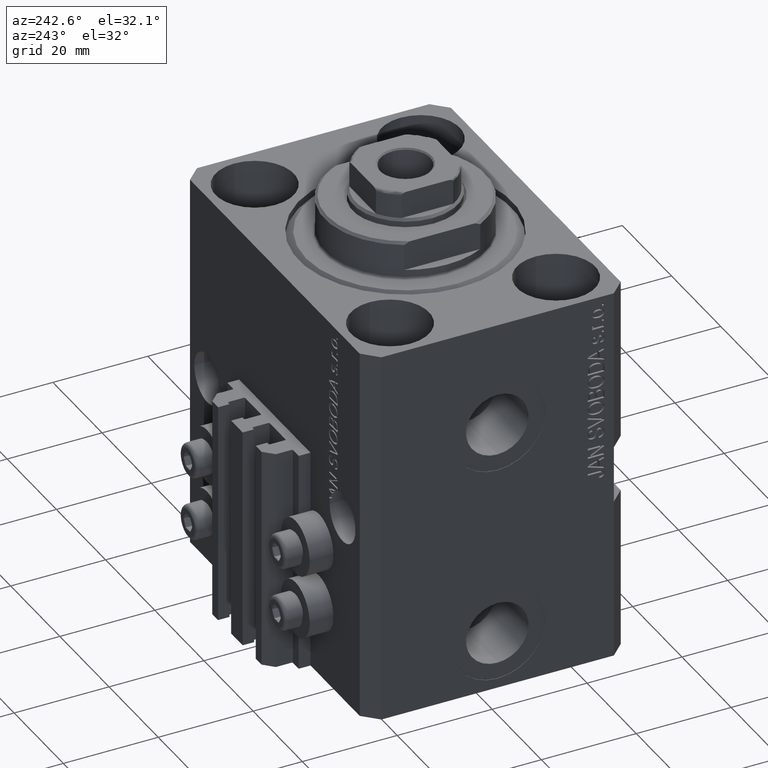
[diagram: clean part render]
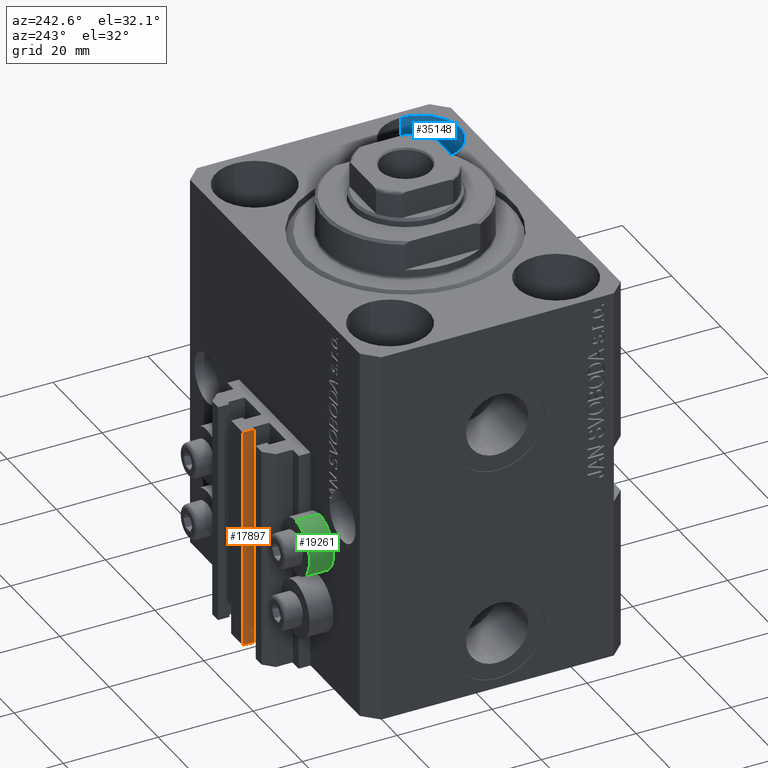
[diagram: same view with three faces highlighted in distinct colors, each labeled with its STEP entity id]
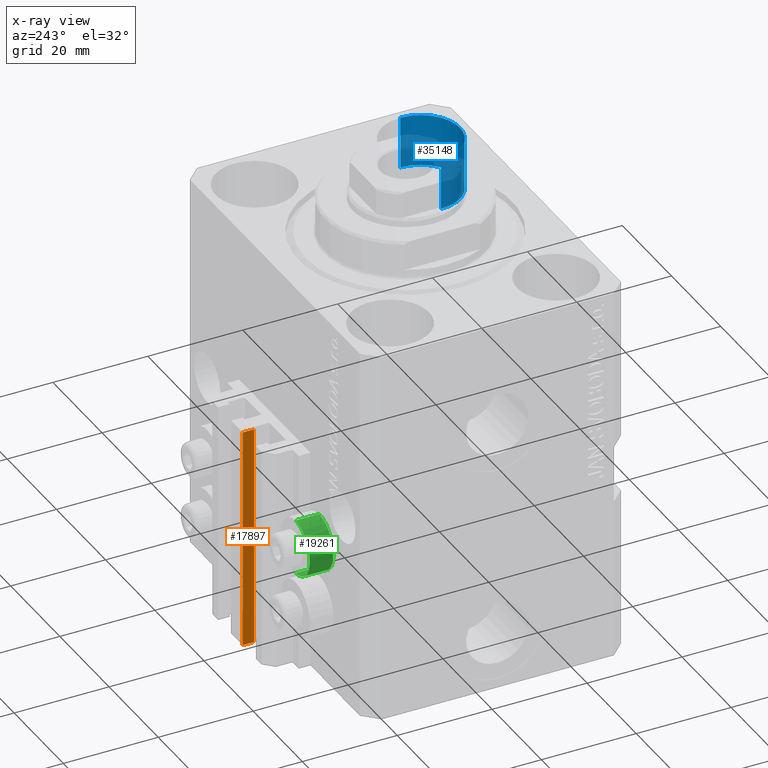
[diagram: x-ray of the same camera — body ghosted, the three highlighted faces saturated]
A machine part, auxiliary view with three faces highlighted in distinct colors.
The next image is the same camera in x-ray (body ghosted, the three faces saturated) — at least one of them is partly hidden behind the body in this view.
Their STEP definitions:

[orange] entity #17897 — the highlighted planar face has unit normal (-1, -0, 0).
#2616 = ORIENTED_EDGE ( 'NONE', *, *, #17752, .T. ) ;
#5823 = FACE_OUTER_BOUND ( 'NONE', #46488, .T. ) ;
#8349 = CARTESIAN_POINT ( 'NONE',  ( -2.350000000000003642, 35.50000000000001421, -80.00000000000000000 ) ) ;
#8586 = LINE ( 'NONE', #8349, #25302 ) ;
#9029 = LINE ( 'NONE', #9267, #38406 ) ;
#9267 = CARTESIAN_POINT ( 'NONE',  ( -2.350000000000003642, 35.50000000000001421, -80.00000000000000000 ) ) ;
#9744 = VERTEX_POINT ( 'NONE', #18427 ) ;
#10314 = CARTESIAN_POINT ( 'NONE',  ( -2.350000000000003642, 35.50000000000001421, -80.00000000000000000 ) ) ;
#12482 = CARTESIAN_POINT ( 'NONE',  ( -2.350000000000003197, 33.10000000000000853, -80.00000000000000000 ) ) ;
#14524 = CARTESIAN_POINT ( 'NONE',  ( -2.350000000000003642, 35.50000000000001421, -33.00000000000000000 ) ) ;
#15675 = EDGE_CURVE ( 'NONE', #9744, #31018, #8586, .T. ) ;
#17752 = EDGE_CURVE ( 'NONE', #31018, #37538, #44918, .T. ) ;
#17897 = ADVANCED_FACE ( 'NONE', ( #5823 ), #45390, .T. ) ;
#18427 = CARTESIAN_POINT ( 'NONE',  ( -2.350000000000003642, 35.50000000000001421, -80.00000000000000000 ) ) ;
#18815 = DIRECTION ( 'NONE',  ( 1.807003620809174632E-16, -1.000000000000000000, 0.000000000000000000 ) ) ;
#19491 = CARTESIAN_POINT ( 'NONE',  ( -2.350000000000003197, 33.10000000000000853, -80.00000000000000000 ) ) ;
#22337 = VECTOR ( 'NONE', #30242, 1000.000000000000000 ) ;
#23365 = CARTESIAN_POINT ( 'NONE',  ( -2.350000000000003197, 33.10000000000000853, -33.00000000000000000 ) ) ;
#25302 = VECTOR ( 'NONE', #33691, 1000.000000000000000 ) ;
#25706 = VECTOR ( 'NONE', #18815, 1000.000000000000000 ) ;
#27229 = EDGE_CURVE ( 'NONE', #9744, #39802, #9029, .T. ) ;
#29950 = LINE ( 'NONE', #44382, #25706 ) ;
#30242 = DIRECTION ( 'NONE',  ( 0.000000000000000000, 0.000000000000000000, 1.000000000000000000 ) ) ;
#31018 = VERTEX_POINT ( 'NONE', #19491 ) ;
#31876 = DIRECTION ( 'NONE',  ( -1.000000000000000000, -1.807003620809174632E-16, 0.000000000000000000 ) ) ;
#33691 = DIRECTION ( 'NONE',  ( 1.807003620809174632E-16, -1.000000000000000000, 0.000000000000000000 ) ) ;
#34572 = ORIENTED_EDGE ( 'NONE', *, *, #42447, .F. ) ;
#34896 = ORIENTED_EDGE ( 'NONE', *, *, #15675, .T. ) ;
#37538 = VERTEX_POINT ( 'NONE', #23365 ) ;
#38386 = DIRECTION ( 'NONE',  ( 0.000000000000000000, 0.000000000000000000, 1.000000000000000000 ) ) ;
#38406 = VECTOR ( 'NONE', #38386, 1000.000000000000000 ) ;
#39802 = VERTEX_POINT ( 'NONE', #14524 ) ;
#40272 = ORIENTED_EDGE ( 'NONE', *, *, #27229, .F. ) ;
#42287 = DIRECTION ( 'NONE',  ( 1.807003620809174632E-16, -1.000000000000000000, 0.000000000000000000 ) ) ;
#42447 = EDGE_CURVE ( 'NONE', #39802, #37538, #29950, .T. ) ;
#44382 = CARTESIAN_POINT ( 'NONE',  ( -2.350000000000003642, 35.50000000000001421, -33.00000000000000000 ) ) ;
#44918 = LINE ( 'NONE', #12482, #22337 ) ;
#45005 = AXIS2_PLACEMENT_3D ( 'NONE', #10314, #31876, #42287 ) ;
#45390 = PLANE ( 'NONE',  #45005 ) ;
#46488 = EDGE_LOOP ( 'NONE', ( #34572, #40272, #34896, #2616 ) ) ;

[blue] entity #35148 — the highlighted cylindrical surface (partial cylindrical patch) has radius 8.25 mm, axis along (0, 0, 1).
#1579 = EDGE_CURVE ( 'NONE', #11132, #9099, #22271, .T. ) ;
#3558 = DIRECTION ( 'NONE',  ( -0.000000000000000000, -0.000000000000000000, 1.000000000000000000 ) ) ;
#5229 = AXIS2_PLACEMENT_3D ( 'NONE', #9825, #24515, #6267 ) ;
#5878 = VERTEX_POINT ( 'NONE', #46713 ) ;
#6267 = DIRECTION ( 'NONE',  ( 1.000000000000000000, 0.000000000000000000, 0.000000000000000000 ) ) ;
#6778 = CARTESIAN_POINT ( 'NONE',  ( 35.75000000000000711, -17.50000000000000000, -11.00000000000000000 ) ) ;
#7256 = EDGE_LOOP ( 'NONE', ( #8163, #9342, #31207, #34673 ) ) ;
#8163 = ORIENTED_EDGE ( 'NONE', *, *, #16789, .F. ) ;
#8667 = CIRCLE ( 'NONE', #44973, 8.250000000000000000 ) ;
#9099 = VERTEX_POINT ( 'NONE', #18315 ) ;
#9342 = ORIENTED_EDGE ( 'NONE', *, *, #1579, .T. ) ;
#9614 = CARTESIAN_POINT ( 'NONE',  ( 35.75000000000000711, -17.50000000000000000, 0.000000000000000000 ) ) ;
#9825 = CARTESIAN_POINT ( 'NONE',  ( 27.50000000000000355, -17.50000000000000000, -11.00000000000000000 ) ) ;
#10185 = VECTOR ( 'NONE', #21476, 1000.000000000000000 ) ;
#11132 = VERTEX_POINT ( 'NONE', #34470 ) ;
#11369 = CARTESIAN_POINT ( 'NONE',  ( 19.25000000000000000, -17.50000000000000000, -11.00000000000000000 ) ) ;
#13338 = DIRECTION ( 'NONE',  ( 0.000000000000000000, 0.000000000000000000, 1.000000000000000000 ) ) ;
#13610 = CYLINDRICAL_SURFACE ( 'NONE', #5229, 8.250000000000000000 ) ;
#16789 = EDGE_CURVE ( 'NONE', #11132, #5878, #8667, .T. ) ;
#17357 = CARTESIAN_POINT ( 'NONE',  ( 27.50000000000000355, -17.50000000000000000, 0.000000000000000000 ) ) ;
#17858 = FACE_OUTER_BOUND ( 'NONE', #7256, .T. ) ;
#18315 = CARTESIAN_POINT ( 'NONE',  ( 19.25000000000000000, -17.50000000000000000, 0.000000000000000000 ) ) ;
#20015 = EDGE_CURVE ( 'NONE', #5878, #25312, #28566, .T. ) ;
#21476 = DIRECTION ( 'NONE',  ( -0.000000000000000000, -0.000000000000000000, 1.000000000000000000 ) ) ;
#22271 = LINE ( 'NONE', #11369, #46699 ) ;
#24515 = DIRECTION ( 'NONE',  ( -0.000000000000000000, -0.000000000000000000, 1.000000000000000000 ) ) ;
#25312 = VERTEX_POINT ( 'NONE', #9614 ) ;
#25843 = DIRECTION ( 'NONE',  ( 1.000000000000000000, 0.000000000000000000, 0.000000000000000000 ) ) ;
#25973 = CIRCLE ( 'NONE', #28996, 8.250000000000000000 ) ;
#28566 = LINE ( 'NONE', #6778, #10185 ) ;
#28996 = AXIS2_PLACEMENT_3D ( 'NONE', #17357, #13338, #34025 ) ;
#31207 = ORIENTED_EDGE ( 'NONE', *, *, #41363, .T. ) ;
#33640 = DIRECTION ( 'NONE',  ( 0.000000000000000000, 0.000000000000000000, 1.000000000000000000 ) ) ;
#34025 = DIRECTION ( 'NONE',  ( 1.000000000000000000, 0.000000000000000000, 0.000000000000000000 ) ) ;
#34470 = CARTESIAN_POINT ( 'NONE',  ( 19.25000000000000000, -17.50000000000000000, -11.00000000000000000 ) ) ;
#34673 = ORIENTED_EDGE ( 'NONE', *, *, #20015, .F. ) ;
#35148 = ADVANCED_FACE ( 'NONE', ( #17858 ), #13610, .F. ) ;
#41363 = EDGE_CURVE ( 'NONE', #9099, #25312, #25973, .T. ) ;
#43823 = CARTESIAN_POINT ( 'NONE',  ( 27.50000000000000355, -17.50000000000000000, -11.00000000000000000 ) ) ;
#44973 = AXIS2_PLACEMENT_3D ( 'NONE', #43823, #33640, #25843 ) ;
#46699 = VECTOR ( 'NONE', #3558, 1000.000000000000000 ) ;
#46713 = CARTESIAN_POINT ( 'NONE',  ( 35.75000000000000711, -17.50000000000000000, -11.00000000000000000 ) ) ;

[green] entity #19261 — the highlighted cylindrical surface (edge-blend (fillet) strip) has radius 5.8 mm, axis along (0, 1, 0).
#1952 = DIRECTION ( 'NONE',  ( 0.000000000000000000, 0.000000000000000000, 1.000000000000000000 ) ) ;
#4215 = DIRECTION ( 'NONE',  ( -0.000000000000000000, 1.000000000000000000, -0.000000000000000000 ) ) ;
#4392 = CARTESIAN_POINT ( 'NONE',  ( -18.00000000000000355, 32.49999999996100541, -44.60000000000000142 ) ) ;
#5491 = CYLINDRICAL_SURFACE ( 'NONE', #5619, 5.799999999999999822 ) ;
#5619 = AXIS2_PLACEMENT_3D ( 'NONE', #41725, #46224, #1952 ) ;
#6695 = CARTESIAN_POINT ( 'NONE',  ( -18.00000000000000355, 32.49999999996100541, -56.20000000000000284 ) ) ;
#9777 = EDGE_CURVE ( 'NONE', #37173, #44053, #12141, .T. ) ;
#9848 = CARTESIAN_POINT ( 'NONE',  ( -18.00000000000000355, 27.50000000000000355, -56.20000000000000284 ) ) ;
#10275 = EDGE_LOOP ( 'NONE', ( #13779, #15872, #36640, #28806 ) ) ;
#12141 = CIRCLE ( 'NONE', #46189, 5.799999999999999822 ) ;
#12159 = CARTESIAN_POINT ( 'NONE',  ( -18.00000000000000355, 32.49999999996100541, -44.60000000000000142 ) ) ;
#12395 = LINE ( 'NONE', #12159, #28679 ) ;
#13141 = CARTESIAN_POINT ( 'NONE',  ( -18.00000000000000355, 27.50000000000000355, -44.60000000000000142 ) ) ;
#13779 = ORIENTED_EDGE ( 'NONE', *, *, #41490, .F. ) ;
#15016 = AXIS2_PLACEMENT_3D ( 'NONE', #15368, #22473, #43780 ) ;
#15351 = CARTESIAN_POINT ( 'NONE',  ( -18.00000000000000355, 32.49999999996100541, -50.39999999999999858 ) ) ;
#15368 = CARTESIAN_POINT ( 'NONE',  ( -18.00000000000000355, 27.50000000000000355, -50.39999999999999858 ) ) ;
#15872 = ORIENTED_EDGE ( 'NONE', *, *, #32636, .T. ) ;
#19261 = ADVANCED_FACE ( 'NONE', ( #37717 ), #5491, .T. ) ;
#19374 = CARTESIAN_POINT ( 'NONE',  ( -18.00000000000000355, 32.49999999996100541, -56.20000000000000284 ) ) ;
#21158 = DIRECTION ( 'NONE',  ( -0.000000000000000000, 1.000000000000000000, -0.000000000000000000 ) ) ;
#22459 = VERTEX_POINT ( 'NONE', #13141 ) ;
#22473 = DIRECTION ( 'NONE',  ( -0.000000000000000000, 1.000000000000000000, -0.000000000000000000 ) ) ;
#25171 = LINE ( 'NONE', #6695, #33521 ) ;
#28679 = VECTOR ( 'NONE', #33709, 1000.000000000000000 ) ;
#28806 = ORIENTED_EDGE ( 'NONE', *, *, #9777, .F. ) ;
#29797 = DIRECTION ( 'NONE',  ( 0.000000000000000000, 0.000000000000000000, 1.000000000000000000 ) ) ;
#30219 = EDGE_CURVE ( 'NONE', #22459, #44053, #12395, .T. ) ;
#32636 = EDGE_CURVE ( 'NONE', #38486, #22459, #43731, .T. ) ;
#33521 = VECTOR ( 'NONE', #21158, 1000.000000000000000 ) ;
#33709 = DIRECTION ( 'NONE',  ( -0.000000000000000000, 1.000000000000000000, -0.000000000000000000 ) ) ;
#36640 = ORIENTED_EDGE ( 'NONE', *, *, #30219, .T. ) ;
#37173 = VERTEX_POINT ( 'NONE', #19374 ) ;
#37717 = FACE_OUTER_BOUND ( 'NONE', #10275, .T. ) ;
#38486 = VERTEX_POINT ( 'NONE', #9848 ) ;
#41490 = EDGE_CURVE ( 'NONE', #38486, #37173, #25171, .T. ) ;
#41725 = CARTESIAN_POINT ( 'NONE',  ( -18.00000000000000355, 32.49999999996100541, -50.39999999999999858 ) ) ;
#43731 = CIRCLE ( 'NONE', #15016, 5.799999999999999822 ) ;
#43780 = DIRECTION ( 'NONE',  ( 0.000000000000000000, 0.000000000000000000, 1.000000000000000000 ) ) ;
#44053 = VERTEX_POINT ( 'NONE', #4392 ) ;
#46189 = AXIS2_PLACEMENT_3D ( 'NONE', #15351, #4215, #29797 ) ;
#46224 = DIRECTION ( 'NONE',  ( -0.000000000000000000, 1.000000000000000000, -0.000000000000000000 ) ) ;